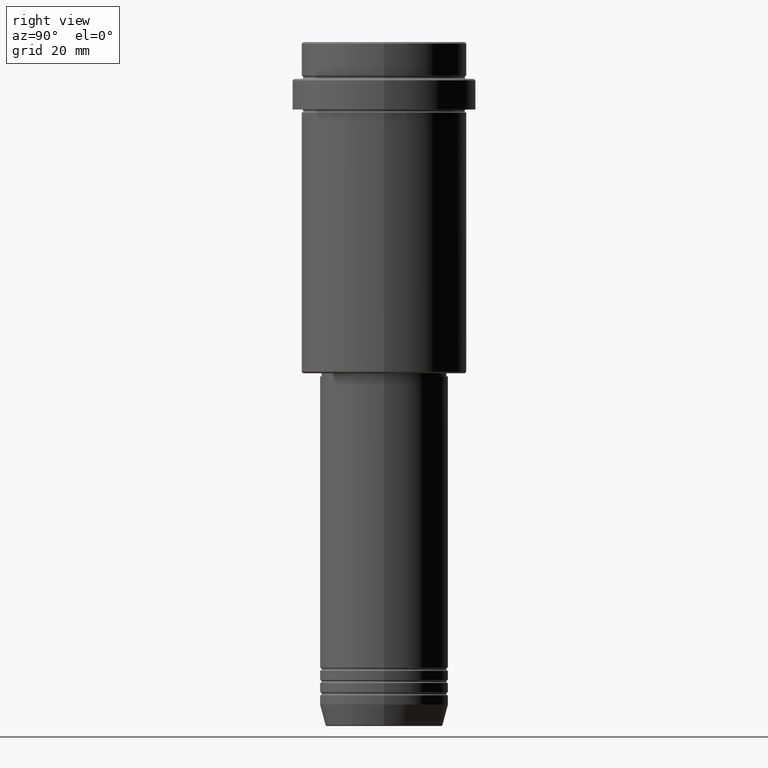
[diagram: clean part render]
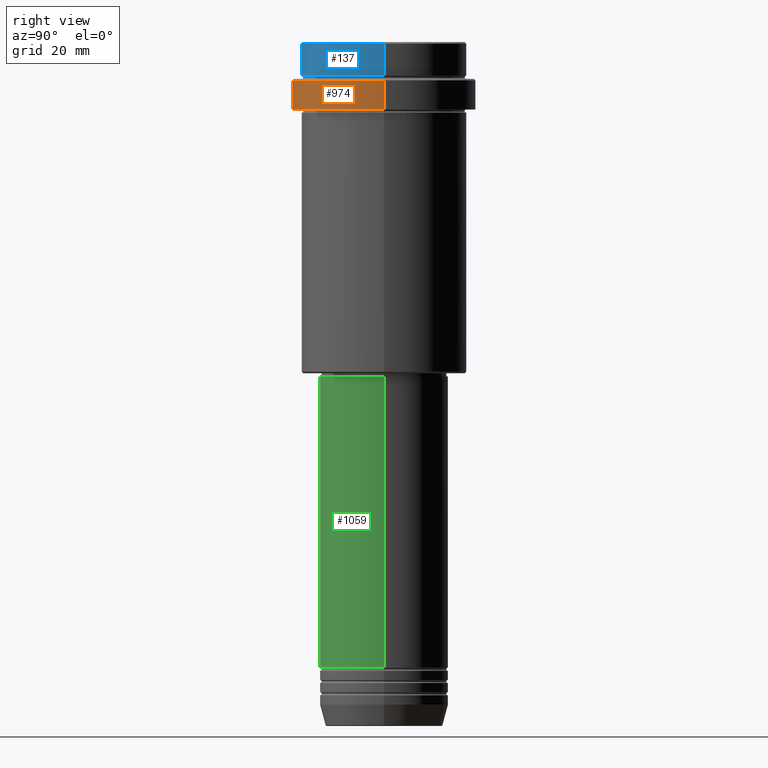
[diagram: same view with three faces highlighted in distinct colors, each labeled with its STEP entity id]
A machine part, right view with three faces highlighted in distinct colors.
Their STEP definitions:

[orange] entity #974 — the highlighted cylindrical surface (partial cylindrical patch) has radius 30 mm, axis along (-0, -0, 1).
#77 = VERTEX_POINT ( 'NONE', #568 ) ;
#108 = CARTESIAN_POINT ( 'NONE',  ( 0.000000000000000000, 0.000000000000000000, 0.000000000000000000 ) ) ;
#110 = ORIENTED_EDGE ( 'NONE', *, *, #1073, .T. ) ;
#117 = CIRCLE ( 'NONE', #1123, 30.00000000000000000 ) ;
#147 = CARTESIAN_POINT ( 'NONE',  ( -30.00000000000000000, 3.673940397442059178E-15, 0.000000000000000000 ) ) ;
#159 = ORIENTED_EDGE ( 'NONE', *, *, #333, .T. ) ;
#179 = VECTOR ( 'NONE', #472, 1000.000000000000000 ) ;
#235 = EDGE_CURVE ( 'NONE', #824, #77, #1025, .T. ) ;
#240 = CARTESIAN_POINT ( 'NONE',  ( 30.00000000000000000, 0.000000000000000000, 0.000000000000000000 ) ) ;
#246 = CIRCLE ( 'NONE', #1335, 29.99999999999999645 ) ;
#333 = EDGE_CURVE ( 'NONE', #952, #1202, #1231, .T. ) ;
#461 = CYLINDRICAL_SURFACE ( 'NONE', #1149, 30.00000000000000000 ) ;
#462 = CARTESIAN_POINT ( 'NONE',  ( 0.000000000000000000, 0.000000000000000000, -12.49999999999995381 ) ) ;
#472 = DIRECTION ( 'NONE',  ( -0.000000000000000000, -0.000000000000000000, 1.000000000000000000 ) ) ;
#486 = DIRECTION ( 'NONE',  ( 1.000000000000000000, 0.000000000000000000, 0.000000000000000000 ) ) ;
#553 = DIRECTION ( 'NONE',  ( 1.000000000000000000, 0.000000000000000000, 0.000000000000000000 ) ) ;
#558 = FACE_OUTER_BOUND ( 'NONE', #749, .T. ) ;
#568 = CARTESIAN_POINT ( 'NONE',  ( -30.00000000000000000, 3.673940397442059178E-15, -12.49999999999995381 ) ) ;
#682 = CARTESIAN_POINT ( 'NONE',  ( 29.99999999999999645, 0.000000000000000000, -22.00000000000000355 ) ) ;
#688 = DIRECTION ( 'NONE',  ( -0.000000000000000000, -0.000000000000000000, 1.000000000000000000 ) ) ;
#749 = EDGE_LOOP ( 'NONE', ( #765, #110, #159, #1151 ) ) ;
#765 = ORIENTED_EDGE ( 'NONE', *, *, #235, .F. ) ;
#785 = CARTESIAN_POINT ( 'NONE',  ( -29.99999999999999645, 3.673940397442058389E-15, -22.00000000000000355 ) ) ;
#824 = VERTEX_POINT ( 'NONE', #785 ) ;
#843 = CARTESIAN_POINT ( 'NONE',  ( 30.00000000000000000, 0.000000000000000000, -12.49999999999995381 ) ) ;
#846 = EDGE_CURVE ( 'NONE', #1202, #77, #117, .T. ) ;
#906 = DIRECTION ( 'NONE',  ( -0.000000000000000000, -0.000000000000000000, 1.000000000000000000 ) ) ;
#907 = DIRECTION ( 'NONE',  ( 1.000000000000000000, 0.000000000000000000, 0.000000000000000000 ) ) ;
#952 = VERTEX_POINT ( 'NONE', #682 ) ;
#974 = ADVANCED_FACE ( 'NONE', ( #558 ), #461, .T. ) ;
#1025 = LINE ( 'NONE', #147, #179 ) ;
#1027 = DIRECTION ( 'NONE',  ( -0.000000000000000000, -0.000000000000000000, 1.000000000000000000 ) ) ;
#1050 = VECTOR ( 'NONE', #688, 1000.000000000000000 ) ;
#1073 = EDGE_CURVE ( 'NONE', #824, #952, #246, .T. ) ;
#1118 = DIRECTION ( 'NONE',  ( 0.000000000000000000, 0.000000000000000000, -1.000000000000000000 ) ) ;
#1123 = AXIS2_PLACEMENT_3D ( 'NONE', #462, #1118, #907 ) ;
#1140 = CARTESIAN_POINT ( 'NONE',  ( 0.000000000000000000, 0.000000000000000000, -22.00000000000000355 ) ) ;
#1149 = AXIS2_PLACEMENT_3D ( 'NONE', #108, #906, #553 ) ;
#1151 = ORIENTED_EDGE ( 'NONE', *, *, #846, .T. ) ;
#1202 = VERTEX_POINT ( 'NONE', #843 ) ;
#1231 = LINE ( 'NONE', #240, #1050 ) ;
#1335 = AXIS2_PLACEMENT_3D ( 'NONE', #1140, #1027, #486 ) ;

[blue] entity #137 — the highlighted cylindrical surface (partial cylindrical patch) has radius 27 mm, axis along (-0, -0, 1).
#5 = LINE ( 'NONE', #881, #530 ) ;
#23 = AXIS2_PLACEMENT_3D ( 'NONE', #1000, #902, #1220 ) ;
#137 = ADVANCED_FACE ( 'NONE', ( #370 ), #800, .T. ) ;
#245 = EDGE_CURVE ( 'NONE', #459, #1242, #450, .T. ) ;
#250 = DIRECTION ( 'NONE',  ( -0.000000000000000000, -0.000000000000000000, 1.000000000000000000 ) ) ;
#276 = CARTESIAN_POINT ( 'NONE',  ( 26.99999999999999645, 0.000000000000000000, 0.000000000000000000 ) ) ;
#325 = VERTEX_POINT ( 'NONE', #937 ) ;
#368 = CARTESIAN_POINT ( 'NONE',  ( -26.99999999999999645, 3.306546357697853339E-15, -11.00000000000000178 ) ) ;
#370 = FACE_OUTER_BOUND ( 'NONE', #887, .T. ) ;
#427 = CARTESIAN_POINT ( 'NONE',  ( -26.99999999999999645, 3.306546357697853339E-15, -0.4999999999999761302 ) ) ;
#450 = CIRCLE ( 'NONE', #1023, 26.99999999999999645 ) ;
#459 = VERTEX_POINT ( 'NONE', #791 ) ;
#530 = VECTOR ( 'NONE', #1218, 1000.000000000000000 ) ;
#582 = DIRECTION ( 'NONE',  ( 1.000000000000000000, 0.000000000000000000, 0.000000000000000000 ) ) ;
#583 = LINE ( 'NONE', #276, #782 ) ;
#605 = ORIENTED_EDGE ( 'NONE', *, *, #1109, .T. ) ;
#608 = DIRECTION ( 'NONE',  ( -0.000000000000000000, -0.000000000000000000, 1.000000000000000000 ) ) ;
#647 = ORIENTED_EDGE ( 'NONE', *, *, #797, .T. ) ;
#697 = DIRECTION ( 'NONE',  ( 1.000000000000000000, 0.000000000000000000, 0.000000000000000000 ) ) ;
#711 = CARTESIAN_POINT ( 'NONE',  ( 0.000000000000000000, 0.000000000000000000, -0.4999999999999761302 ) ) ;
#782 = VECTOR ( 'NONE', #608, 1000.000000000000000 ) ;
#791 = CARTESIAN_POINT ( 'NONE',  ( 26.99999999999999645, 0.000000000000000000, -0.4999999999999761302 ) ) ;
#797 = EDGE_CURVE ( 'NONE', #1368, #325, #1214, .T. ) ;
#800 = CYLINDRICAL_SURFACE ( 'NONE', #985, 26.99999999999999645 ) ;
#801 = DIRECTION ( 'NONE',  ( 0.000000000000000000, 0.000000000000000000, -1.000000000000000000 ) ) ;
#881 = CARTESIAN_POINT ( 'NONE',  ( -26.99999999999999645, 3.306546357697853339E-15, 0.000000000000000000 ) ) ;
#887 = EDGE_LOOP ( 'NONE', ( #1197, #647, #605, #1319 ) ) ;
#902 = DIRECTION ( 'NONE',  ( -0.000000000000000000, -0.000000000000000000, 1.000000000000000000 ) ) ;
#937 = CARTESIAN_POINT ( 'NONE',  ( 26.99999999999999645, 0.000000000000000000, -11.00000000000000178 ) ) ;
#985 = AXIS2_PLACEMENT_3D ( 'NONE', #1239, #250, #697 ) ;
#992 = EDGE_CURVE ( 'NONE', #1368, #1242, #5, .T. ) ;
#1000 = CARTESIAN_POINT ( 'NONE',  ( 0.000000000000000000, 0.000000000000000000, -11.00000000000000178 ) ) ;
#1023 = AXIS2_PLACEMENT_3D ( 'NONE', #711, #801, #582 ) ;
#1109 = EDGE_CURVE ( 'NONE', #325, #459, #583, .T. ) ;
#1197 = ORIENTED_EDGE ( 'NONE', *, *, #992, .F. ) ;
#1214 = CIRCLE ( 'NONE', #23, 26.99999999999999645 ) ;
#1218 = DIRECTION ( 'NONE',  ( -0.000000000000000000, -0.000000000000000000, 1.000000000000000000 ) ) ;
#1220 = DIRECTION ( 'NONE',  ( 1.000000000000000000, 0.000000000000000000, 0.000000000000000000 ) ) ;
#1239 = CARTESIAN_POINT ( 'NONE',  ( 0.000000000000000000, 0.000000000000000000, 0.000000000000000000 ) ) ;
#1242 = VERTEX_POINT ( 'NONE', #427 ) ;
#1319 = ORIENTED_EDGE ( 'NONE', *, *, #245, .T. ) ;
#1368 = VERTEX_POINT ( 'NONE', #368 ) ;

[green] entity #1059 — the highlighted cylindrical surface (partial cylindrical patch) has radius 21 mm, axis along (-0, -0, 1).
#11 = VERTEX_POINT ( 'NONE', #373 ) ;
#51 = DIRECTION ( 'NONE',  ( 1.000000000000000000, 0.000000000000000000, 0.000000000000000000 ) ) ;
#148 = CARTESIAN_POINT ( 'NONE',  ( -20.99999999999999645, 2.571758278209441267E-15, -109.0000000000000284 ) ) ;
#154 = FACE_OUTER_BOUND ( 'NONE', #309, .T. ) ;
#174 = DIRECTION ( 'NONE',  ( -0.000000000000000000, -0.000000000000000000, 1.000000000000000000 ) ) ;
#201 = AXIS2_PLACEMENT_3D ( 'NONE', #1221, #1035, #589 ) ;
#252 = DIRECTION ( 'NONE',  ( -0.000000000000000000, -0.000000000000000000, 1.000000000000000000 ) ) ;
#285 = EDGE_CURVE ( 'NONE', #1084, #11, #916, .T. ) ;
#309 = EDGE_LOOP ( 'NONE', ( #494, #498, #757, #542 ) ) ;
#373 = CARTESIAN_POINT ( 'NONE',  ( 20.99999999999999645, 0.000000000000000000, -109.0000000000000284 ) ) ;
#433 = AXIS2_PLACEMENT_3D ( 'NONE', #707, #252, #1134 ) ;
#448 = EDGE_CURVE ( 'NONE', #1372, #1383, #852, .T. ) ;
#476 = EDGE_CURVE ( 'NONE', #1383, #11, #1228, .T. ) ;
#492 = DIRECTION ( 'NONE',  ( -0.000000000000000000, -0.000000000000000000, 1.000000000000000000 ) ) ;
#494 = ORIENTED_EDGE ( 'NONE', *, *, #1205, .F. ) ;
#498 = ORIENTED_EDGE ( 'NONE', *, *, #448, .T. ) ;
#542 = ORIENTED_EDGE ( 'NONE', *, *, #285, .F. ) ;
#578 = CYLINDRICAL_SURFACE ( 'NONE', #433, 20.99999999999999645 ) ;
#589 = DIRECTION ( 'NONE',  ( 1.000000000000000000, 0.000000000000000000, 0.000000000000000000 ) ) ;
#617 = LINE ( 'NONE', #1051, #1007 ) ;
#631 = DIRECTION ( 'NONE',  ( -0.000000000000000000, -0.000000000000000000, 1.000000000000000000 ) ) ;
#695 = CARTESIAN_POINT ( 'NONE',  ( -21.00000000000000000, 2.571758278209441661E-15, -203.9999999999999147 ) ) ;
#707 = CARTESIAN_POINT ( 'NONE',  ( 0.000000000000000000, 0.000000000000000000, 0.000000000000000000 ) ) ;
#757 = ORIENTED_EDGE ( 'NONE', *, *, #476, .T. ) ;
#852 = CIRCLE ( 'NONE', #201, 21.00000000000000000 ) ;
#914 = CARTESIAN_POINT ( 'NONE',  ( 21.00000000000000000, 0.000000000000000000, -203.9999999999999147 ) ) ;
#916 = CIRCLE ( 'NONE', #1331, 20.99999999999999645 ) ;
#1007 = VECTOR ( 'NONE', #631, 1000.000000000000000 ) ;
#1035 = DIRECTION ( 'NONE',  ( -0.000000000000000000, -0.000000000000000000, 1.000000000000000000 ) ) ;
#1051 = CARTESIAN_POINT ( 'NONE',  ( -20.99999999999999645, 2.571758278209441267E-15, 0.000000000000000000 ) ) ;
#1059 = ADVANCED_FACE ( 'NONE', ( #154 ), #578, .T. ) ;
#1084 = VERTEX_POINT ( 'NONE', #148 ) ;
#1099 = VECTOR ( 'NONE', #174, 1000.000000000000000 ) ;
#1134 = DIRECTION ( 'NONE',  ( 1.000000000000000000, 0.000000000000000000, 0.000000000000000000 ) ) ;
#1205 = EDGE_CURVE ( 'NONE', #1372, #1084, #617, .T. ) ;
#1221 = CARTESIAN_POINT ( 'NONE',  ( 0.000000000000000000, 0.000000000000000000, -203.9999999999999147 ) ) ;
#1228 = LINE ( 'NONE', #1281, #1099 ) ;
#1263 = CARTESIAN_POINT ( 'NONE',  ( 0.000000000000000000, 0.000000000000000000, -109.0000000000000284 ) ) ;
#1281 = CARTESIAN_POINT ( 'NONE',  ( 20.99999999999999645, 0.000000000000000000, 0.000000000000000000 ) ) ;
#1331 = AXIS2_PLACEMENT_3D ( 'NONE', #1263, #492, #51 ) ;
#1372 = VERTEX_POINT ( 'NONE', #695 ) ;
#1383 = VERTEX_POINT ( 'NONE', #914 ) ;